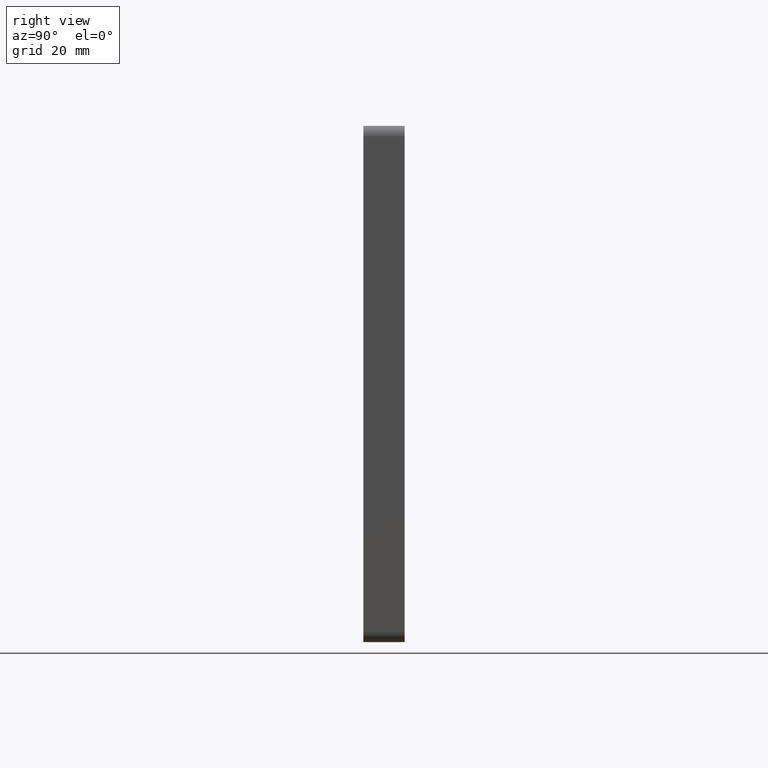
[diagram: clean part render]
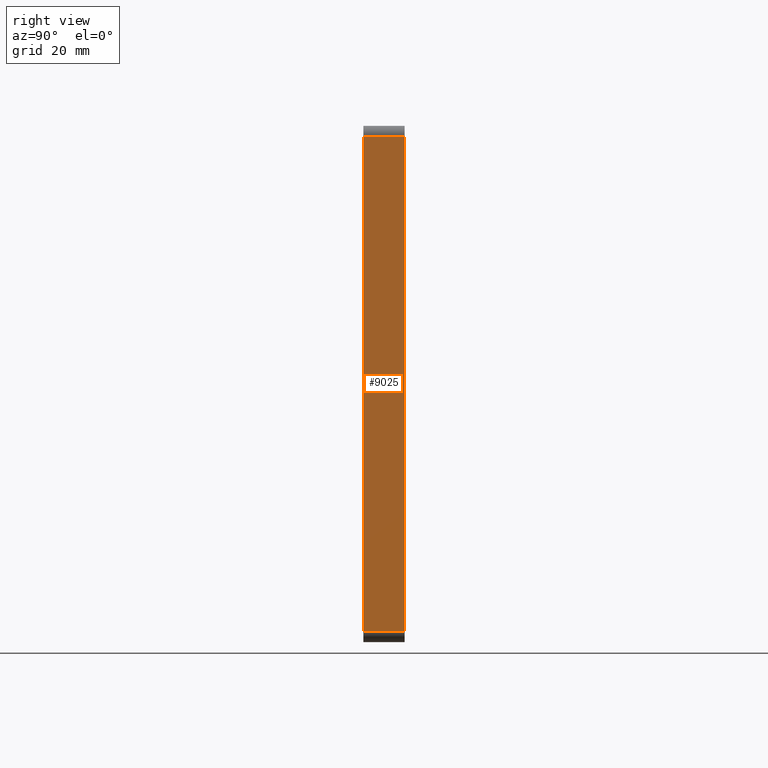
[diagram: same view with one face highlighted and labeled with its STEP entity id]
A machine part, right view. The second image highlights one B-rep face of the part: STEP entity #9025.
In plain terms, the highlighted planar face has unit normal (-1, 0, 0).
Its self-contained STEP definition (entity closure, byte-faithful):
#531 = AXIS2_PLACEMENT_3D ( 'NONE', #4258, #1887, #11110 ) ;
#770 = DIRECTION ( 'NONE',  ( -2.775557561562891351E-16, -0.000000000000000000, -1.000000000000000000 ) ) ;
#1183 = DIRECTION ( 'NONE',  ( 0.000000000000000000, -1.000000000000000000, 0.000000000000000000 ) ) ;
#1887 = DIRECTION ( 'NONE',  ( -1.000000000000000000, 0.000000000000000000, 2.775557561562891351E-16 ) ) ;
#2115 = ORIENTED_EDGE ( 'NONE', *, *, #3515, .T. ) ;
#3050 = CARTESIAN_POINT ( 'NONE',  ( 49.99999999999998579, 8.000000000000000000, -49.99999999999999289 ) ) ;
#3515 = EDGE_CURVE ( 'NONE', #9052, #6957, #7214, .T. ) ;
#4001 = ORIENTED_EDGE ( 'NONE', *, *, #6308, .T. ) ;
#4114 = CARTESIAN_POINT ( 'NONE',  ( 50.00000000000001421, 0.000000000000000000, 48.00000000000000711 ) ) ;
#4258 = CARTESIAN_POINT ( 'NONE',  ( 49.99999999999998579, 8.000000000000000000, -49.99999999999999289 ) ) ;
#4464 = CARTESIAN_POINT ( 'NONE',  ( 50.00000000000001421, 8.000000000000000000, 48.00000000000000711 ) ) ;
#4712 = CARTESIAN_POINT ( 'NONE',  ( 49.99999999999998579, 0.000000000000000000, -49.99999999999999289 ) ) ;
#4859 = VERTEX_POINT ( 'NONE', #11246 ) ;
#5231 = EDGE_CURVE ( 'NONE', #4859, #8664, #10793, .T. ) ;
#6308 = EDGE_CURVE ( 'NONE', #8664, #9052, #10024, .T. ) ;
#6434 = PLANE ( 'NONE',  #531 ) ;
#6957 = VERTEX_POINT ( 'NONE', #10345 ) ;
#7214 = LINE ( 'NONE', #9028, #9194 ) ;
#7499 = LINE ( 'NONE', #3050, #13284 ) ;
#8288 = VECTOR ( 'NONE', #1183, 1000.000000000000000 ) ;
#8664 = VERTEX_POINT ( 'NONE', #4114 ) ;
#9025 = ADVANCED_FACE ( 'NONE', ( #13083 ), #6434, .F. ) ;
#9028 = CARTESIAN_POINT ( 'NONE',  ( 49.99999999999998579, 8.000000000000000000, -47.99999999999999289 ) ) ;
#9052 = VERTEX_POINT ( 'NONE', #14514 ) ;
#9194 = VECTOR ( 'NONE', #10615, 1000.000000000000000 ) ;
#10024 = LINE ( 'NONE', #4712, #10759 ) ;
#10345 = CARTESIAN_POINT ( 'NONE',  ( 49.99999999999998579, 8.000000000000000000, -47.99999999999999289 ) ) ;
#10615 = DIRECTION ( 'NONE',  ( -0.000000000000000000, 1.000000000000000000, -0.000000000000000000 ) ) ;
#10759 = VECTOR ( 'NONE', #12787, 1000.000000000000000 ) ;
#10793 = LINE ( 'NONE', #4464, #8288 ) ;
#10912 = ORIENTED_EDGE ( 'NONE', *, *, #5231, .T. ) ;
#11110 = DIRECTION ( 'NONE',  ( 2.775557561562891351E-16, 0.000000000000000000, 1.000000000000000000 ) ) ;
#11246 = CARTESIAN_POINT ( 'NONE',  ( 50.00000000000001421, 8.000000000000000000, 48.00000000000000711 ) ) ;
#12787 = DIRECTION ( 'NONE',  ( -2.775557561562891351E-16, -0.000000000000000000, -1.000000000000000000 ) ) ;
#13083 = FACE_OUTER_BOUND ( 'NONE', #13320, .T. ) ;
#13284 = VECTOR ( 'NONE', #770, 1000.000000000000000 ) ;
#13320 = EDGE_LOOP ( 'NONE', ( #4001, #2115, #13801, #10912 ) ) ;
#13801 = ORIENTED_EDGE ( 'NONE', *, *, #13972, .F. ) ;
#13972 = EDGE_CURVE ( 'NONE', #4859, #6957, #7499, .T. ) ;
#14514 = CARTESIAN_POINT ( 'NONE',  ( 49.99999999999998579, 0.000000000000000000, -47.99999999999999289 ) ) ;